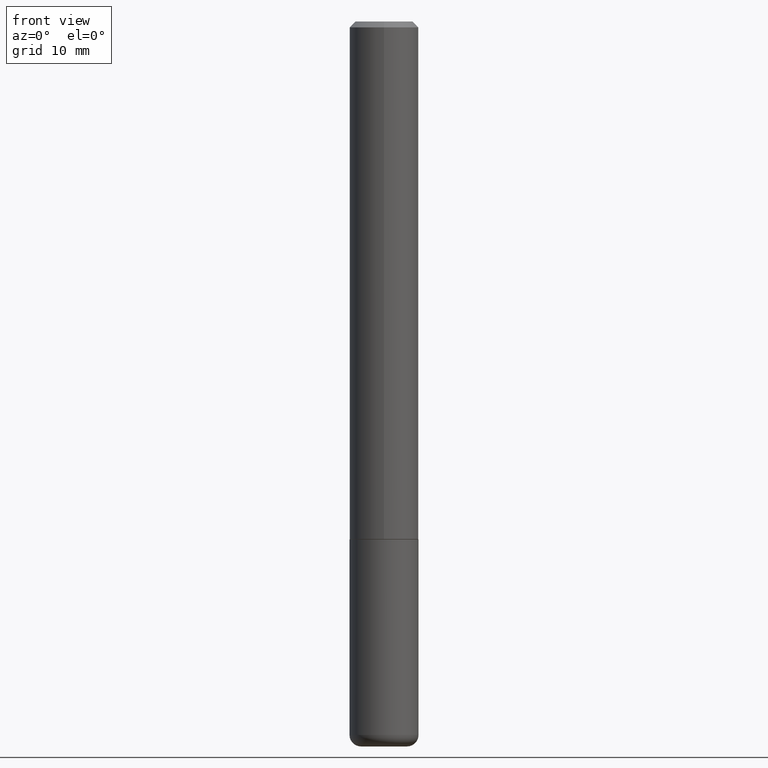
[diagram: clean part render]
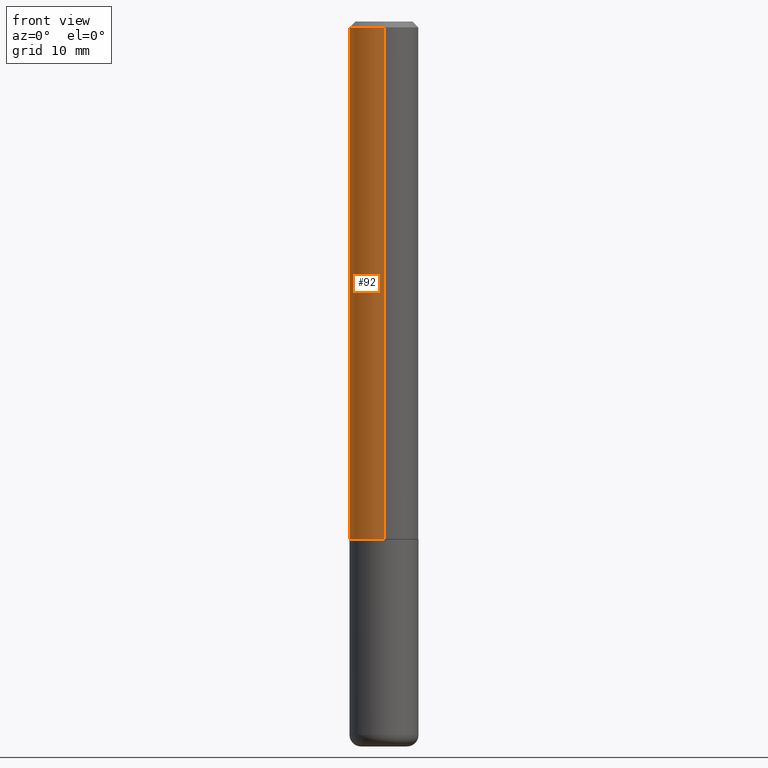
[diagram: same view with one face highlighted and labeled with its STEP entity id]
A machine part, front view. The second image highlights one B-rep face of the part: STEP entity #92.
In plain terms, the highlighted cylindrical surface (edge-blend (fillet) strip) has radius 2.9997 mm, axis along (-0, 0, 1).
Its self-contained STEP definition (entity closure, byte-faithful):
#8 = ORIENTED_EDGE ( 'NONE', *, *, #40, .T. ) ;
#13 = EDGE_CURVE ( 'NONE', #284, #355, #306, .T. ) ;
#16 = LINE ( 'NONE', #91, #412 ) ;
#20 = CIRCLE ( 'NONE', #371, 0.1180999999999999966 ) ;
#28 = AXIS2_PLACEMENT_3D ( 'NONE', #98, #254, #279 ) ;
#40 = EDGE_CURVE ( 'NONE', #163, #110, #16, .T. ) ;
#52 = ORIENTED_EDGE ( 'NONE', *, *, #183, .T. ) ;
#69 = EDGE_CURVE ( 'NONE', #355, #110, #20, .T. ) ;
#91 = CARTESIAN_POINT ( 'NONE',  ( -8.246878922347488542E-16, -0.1181000000000001215, 4.127211034545323724E-16 ) ) ;
#92 = ADVANCED_FACE ( 'NONE', ( #402 ), #398, .T. ) ;
#98 = CARTESIAN_POINT ( 'NONE',  ( 4.325998561852691348E-29, -6.187671344425017014E-15, -1.770600000000000174 ) ) ;
#104 = EDGE_LOOP ( 'NONE', ( #318, #52, #8, #302 ) ) ;
#110 = VERTEX_POINT ( 'NONE', #211 ) ;
#114 = CARTESIAN_POINT ( 'NONE',  ( 0.000000000000000000, 0.000000000000000000, 0.000000000000000000 ) ) ;
#124 = DIRECTION ( 'NONE',  ( -2.443238767566187138E-29, 3.494674881071397310E-15, 1.000000000000000000 ) ) ;
#150 = CARTESIAN_POINT ( 'NONE',  ( 4.886477535132384121E-31, -6.989349762142808870E-17, -0.02000000000000004205 ) ) ;
#155 = DIRECTION ( 'NONE',  ( -2.443238767566187138E-29, 3.494674881071397310E-15, 1.000000000000000000 ) ) ;
#163 = VERTEX_POINT ( 'NONE', #195 ) ;
#177 = DIRECTION ( 'NONE',  ( -2.443238767566187138E-29, 3.494674881071396916E-15, 1.000000000000000000 ) ) ;
#183 = EDGE_CURVE ( 'NONE', #284, #163, #281, .T. ) ;
#195 = CARTESIAN_POINT ( 'NONE',  ( -8.246878922347063544E-16, -0.1181000000000064221, -1.770599999999999730 ) ) ;
#211 = CARTESIAN_POINT ( 'NONE',  ( -8.102248135368172434E-16, -0.1181000000000000660, -0.01999999999999962919 ) ) ;
#254 = DIRECTION ( 'NONE',  ( -2.443238767566187138E-29, 3.494674881071396916E-15, 1.000000000000000000 ) ) ;
#272 = DIRECTION ( 'NONE',  ( -6.982962677686265922E-15, -1.000000000000000000, 3.505890868245046092E-15 ) ) ;
#279 = DIRECTION ( 'NONE',  ( -6.982962677686265922E-15, -1.000000000000000000, 4.626330217890360659E-15 ) ) ;
#281 = CIRCLE ( 'NONE', #28, 0.1181000000000002326 ) ;
#284 = VERTEX_POINT ( 'NONE', #418 ) ;
#301 = VECTOR ( 'NONE', #155, 39.37007874015748143 ) ;
#302 = ORIENTED_EDGE ( 'NONE', *, *, #69, .F. ) ;
#306 = LINE ( 'NONE', #368, #301 ) ;
#318 = ORIENTED_EDGE ( 'NONE', *, *, #13, .F. ) ;
#355 = VERTEX_POINT ( 'NONE', #400 ) ;
#361 = AXIS2_PLACEMENT_3D ( 'NONE', #114, #366, #372 ) ;
#366 = DIRECTION ( 'NONE',  ( -2.443238767566187138E-29, 3.494674881071396916E-15, 1.000000000000000000 ) ) ;
#368 = CARTESIAN_POINT ( 'NONE',  ( 8.391509709326790846E-16, 0.1181000000000001215, -4.127211034545323724E-16 ) ) ;
#371 = AXIS2_PLACEMENT_3D ( 'NONE', #150, #177, #272 ) ;
#372 = DIRECTION ( 'NONE',  ( -6.982962677686265922E-15, -1.000000000000000000, 3.494674881071396522E-15 ) ) ;
#398 = CYLINDRICAL_SURFACE ( 'NONE', #361, 0.1181000000000001215 ) ;
#400 = CARTESIAN_POINT ( 'NONE',  ( 8.246878922347484598E-16, 0.1180999999999999273, -0.02000000000000045838 ) ) ;
#402 = FACE_OUTER_BOUND ( 'NONE', #104, .T. ) ;
#412 = VECTOR ( 'NONE', #124, 39.37007874015748143 ) ;
#418 = CARTESIAN_POINT ( 'NONE',  ( 8.391509709327014685E-16, 0.1180999999999940708, -1.770600000000000840 ) ) ;